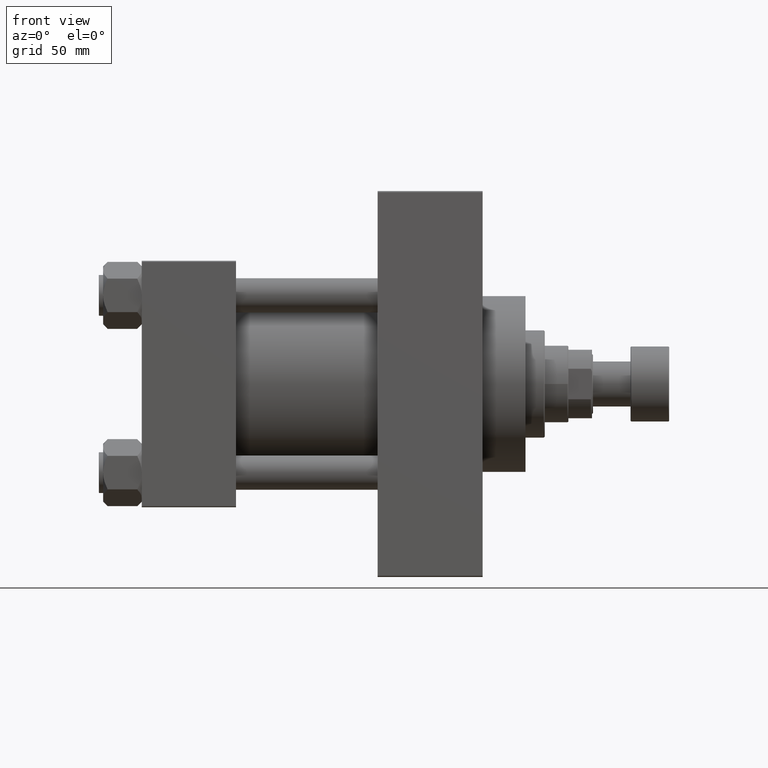
[diagram: clean part render]
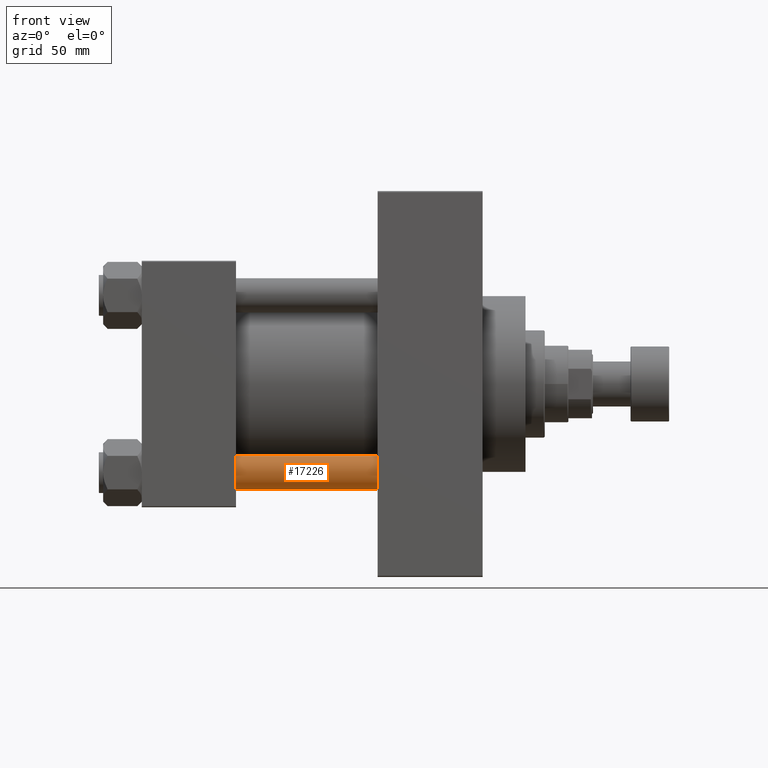
[diagram: same view with one face highlighted and labeled with its STEP entity id]
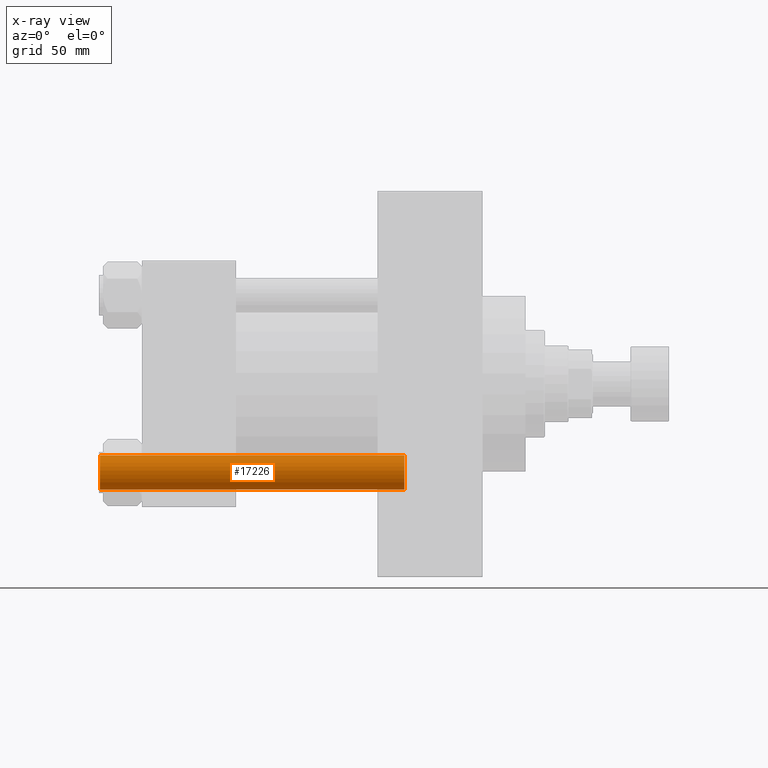
[diagram: x-ray of the same camera — body ghosted, the highlighted face saturated]
A machine part, front view. The second image highlights one B-rep face of the part: STEP entity #17226.
The next image is the same camera in x-ray: the body ghosted, the highlighted face saturated — about 0% of this face is hidden behind the body in this view.
In plain terms, the highlighted cylindrical surface (edge-blend (fillet) strip) has radius 8 mm, axis along (1, 0, 0).
Its self-contained STEP definition (entity closure, byte-faithful):
#1269 = CARTESIAN_POINT ( 'NONE',  ( -8.000000000000000000, 0.000000000000000000, 143.0000000000000000 ) ) ;
#3581 = ORIENTED_EDGE ( 'NONE', *, *, #20183, .T. ) ;
#7129 = ORIENTED_EDGE ( 'NONE', *, *, #29635, .T. ) ;
#7908 = CARTESIAN_POINT ( 'NONE',  ( 8.000000000000000000, 9.797174393178825657E-16, 0.4999999999999726885 ) ) ;
#8895 = ORIENTED_EDGE ( 'NONE', *, *, #10220, .T. ) ;
#9420 = CARTESIAN_POINT ( 'NONE',  ( 8.000000000000000000, 9.797174393178825657E-16, 143.0000000000000000 ) ) ;
#9910 = AXIS2_PLACEMENT_3D ( 'NONE', #18671, #11395, #32174 ) ;
#9944 = ORIENTED_EDGE ( 'NONE', *, *, #22238, .F. ) ;
#10220 = EDGE_CURVE ( 'NONE', #21099, #19663, #15822, .T. ) ;
#10405 = AXIS2_PLACEMENT_3D ( 'NONE', #12713, #35089, #23417 ) ;
#11028 = LINE ( 'NONE', #9420, #40519 ) ;
#11395 = DIRECTION ( 'NONE',  ( -0.000000000000000000, -0.000000000000000000, -1.000000000000000000 ) ) ;
#11539 = CIRCLE ( 'NONE', #44199, 8.000000000000000000 ) ;
#12713 = CARTESIAN_POINT ( 'NONE',  ( 0.000000000000000000, 0.000000000000000000, 0.4999999999999726885 ) ) ;
#13411 = DIRECTION ( 'NONE',  ( -0.000000000000000000, -0.000000000000000000, -1.000000000000000000 ) ) ;
#13667 = CYLINDRICAL_SURFACE ( 'NONE', #9910, 8.000000000000000000 ) ;
#15822 = CIRCLE ( 'NONE', #10405, 8.000000000000000000 ) ;
#17226 = ADVANCED_FACE ( 'NONE', ( #40861 ), #13667, .T. ) ;
#18671 = CARTESIAN_POINT ( 'NONE',  ( 0.000000000000000000, 0.000000000000000000, 143.0000000000000000 ) ) ;
#19310 = EDGE_LOOP ( 'NONE', ( #3581, #7129, #8895, #9944 ) ) ;
#19663 = VERTEX_POINT ( 'NONE', #39152 ) ;
#20183 = EDGE_CURVE ( 'NONE', #33562, #27482, #11539, .T. ) ;
#21099 = VERTEX_POINT ( 'NONE', #7908 ) ;
#22238 = EDGE_CURVE ( 'NONE', #33562, #19663, #23890, .T. ) ;
#22963 = CARTESIAN_POINT ( 'NONE',  ( 0.000000000000000000, 0.000000000000000000, 142.4999999999999716 ) ) ;
#23417 = DIRECTION ( 'NONE',  ( 1.000000000000000000, 0.000000000000000000, 0.000000000000000000 ) ) ;
#23890 = LINE ( 'NONE', #1269, #44270 ) ;
#24019 = CARTESIAN_POINT ( 'NONE',  ( -8.000000000000000000, 0.000000000000000000, 142.4999999999999716 ) ) ;
#24495 = DIRECTION ( 'NONE',  ( -0.000000000000000000, -0.000000000000000000, -1.000000000000000000 ) ) ;
#27482 = VERTEX_POINT ( 'NONE', #39226 ) ;
#29635 = EDGE_CURVE ( 'NONE', #27482, #21099, #11028, .T. ) ;
#32174 = DIRECTION ( 'NONE',  ( -1.000000000000000000, 0.000000000000000000, 0.000000000000000000 ) ) ;
#33562 = VERTEX_POINT ( 'NONE', #24019 ) ;
#35089 = DIRECTION ( 'NONE',  ( -0.000000000000000000, -0.000000000000000000, 1.000000000000000000 ) ) ;
#37823 = DIRECTION ( 'NONE',  ( 0.000000000000000000, 0.000000000000000000, -1.000000000000000000 ) ) ;
#38783 = DIRECTION ( 'NONE',  ( 1.000000000000000000, 0.000000000000000000, 0.000000000000000000 ) ) ;
#39152 = CARTESIAN_POINT ( 'NONE',  ( -8.000000000000000000, 0.000000000000000000, 0.4999999999999726885 ) ) ;
#39226 = CARTESIAN_POINT ( 'NONE',  ( 8.000000000000000000, 9.797174393178825657E-16, 142.4999999999999716 ) ) ;
#40519 = VECTOR ( 'NONE', #24495, 1000.000000000000000 ) ;
#40861 = FACE_OUTER_BOUND ( 'NONE', #19310, .T. ) ;
#44199 = AXIS2_PLACEMENT_3D ( 'NONE', #22963, #37823, #38783 ) ;
#44270 = VECTOR ( 'NONE', #13411, 1000.000000000000000 ) ;